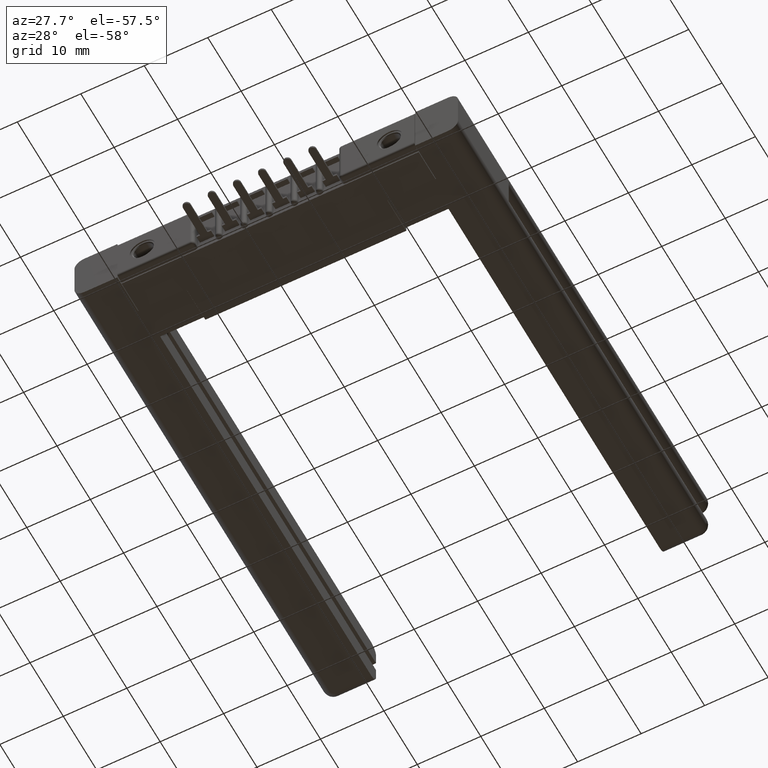
[diagram: clean part render]
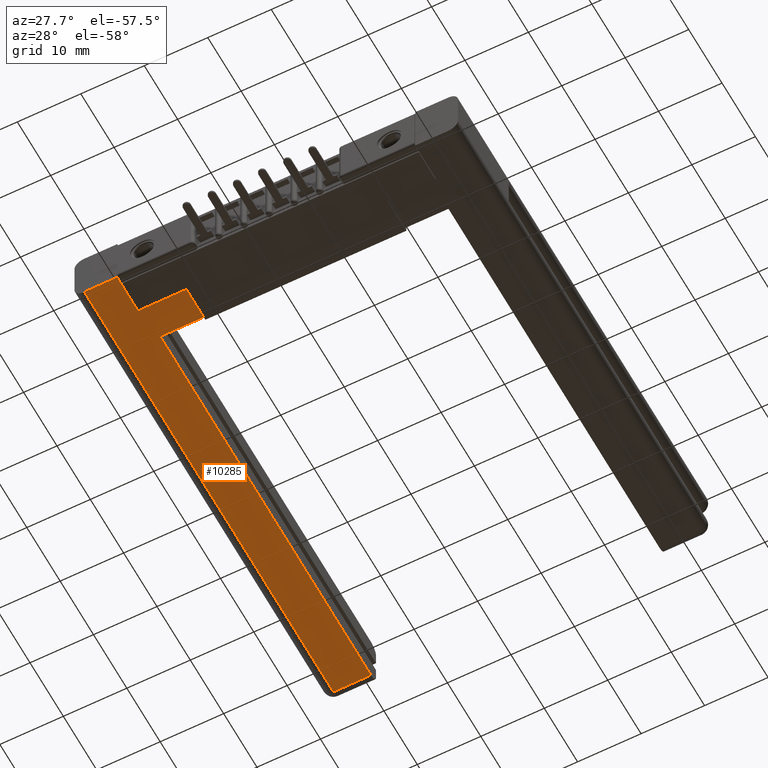
[diagram: same view with one face highlighted and labeled with its STEP entity id]
A machine part, auxiliary view. The second image highlights one B-rep face of the part: STEP entity #10285.
In plain terms, the highlighted planar face has unit normal (0, 0, -1).
Its self-contained STEP definition (entity closure, byte-faithful):
#15 = AXIS2_PLACEMENT_3D ( 'NONE', #10736, #2564, #6596 ) ;
#88 = VECTOR ( 'NONE', #9293, 39.37007874015748100 ) ;
#165 = EDGE_CURVE ( 'NONE', #9585, #3451, #5269, .T. ) ;
#188 = ORIENTED_EDGE ( 'NONE', *, *, #9081, .T. ) ;
#654 = CARTESIAN_POINT ( 'NONE',  ( 0.06150000000000015200, 1.248539903354370400E-016, -0.3400000000000018600 ) ) ;
#1420 = VECTOR ( 'NONE', #9345, 39.37007874015748100 ) ;
#1509 = CARTESIAN_POINT ( 'NONE',  ( 0.2950000000000062600, 0.4500000000000002300, -0.3400000000000031900 ) ) ;
#1545 = LINE ( 'NONE', #2323, #10625 ) ;
#1574 = EDGE_CURVE ( 'NONE', #3653, #1641, #5705, .T. ) ;
#1617 = ORIENTED_EDGE ( 'NONE', *, *, #10049, .T. ) ;
#1641 = VERTEX_POINT ( 'NONE', #11620 ) ;
#1888 = CARTESIAN_POINT ( 'NONE',  ( 0.5650000000000067200, 0.2450000000000008600, -0.3400000000000018600 ) ) ;
#2134 = ORIENTED_EDGE ( 'NONE', *, *, #9231, .F. ) ;
#2200 = LINE ( 'NONE', #10342, #1420 ) ;
#2323 = CARTESIAN_POINT ( 'NONE',  ( 0.2650000000000063400, 0.2450000000000000500, -0.3400000000000031900 ) ) ;
#2495 = CARTESIAN_POINT ( 'NONE',  ( 0.2950000000000062600, 0.4500000000000002300, -0.3400000000000031900 ) ) ;
#2564 = DIRECTION ( 'NONE',  ( 4.510281037539655900E-017, 2.334284690065026700E-016, -1.000000000000000000 ) ) ;
#2609 = VERTEX_POINT ( 'NONE', #9655 ) ;
#2772 = DIRECTION ( 'NONE',  ( 1.000000000000000000, 7.164262422741187300E-016, 4.510281037539672600E-017 ) ) ;
#3157 = CARTESIAN_POINT ( 'NONE',  ( 0.5650000000000069400, 0.4500000000000004000, -0.3400000000000018600 ) ) ;
#3336 = ORIENTED_EDGE ( 'NONE', *, *, #165, .F. ) ;
#3451 = VERTEX_POINT ( 'NONE', #10785 ) ;
#3504 = DIRECTION ( 'NONE',  ( 5.915108984173514200E-016, 1.000000000000000000, -2.334284690065039000E-016 ) ) ;
#3653 = VERTEX_POINT ( 'NONE', #9045 ) ;
#4146 = LINE ( 'NONE', #654, #88 ) ;
#4495 = DIRECTION ( 'NONE',  ( -1.000000000000000000, -7.120336040201832800E-016, -4.510281037539672600E-017 ) ) ;
#5128 = EDGE_LOOP ( 'NONE', ( #188, #1617, #3336, #7218, #7668, #2134, #10970, #5760 ) ) ;
#5195 = LINE ( 'NONE', #5205, #9570 ) ;
#5205 = CARTESIAN_POINT ( 'NONE',  ( 3.551402391763542400E-015, 2.940000000000007100, -0.3400000000000031900 ) ) ;
#5269 = LINE ( 'NONE', #9545, #10117 ) ;
#5556 = EDGE_CURVE ( 'NONE', #7191, #11220, #2200, .T. ) ;
#5587 = PLANE ( 'NONE',  #15 ) ;
#5705 = LINE ( 'NONE', #11789, #10087 ) ;
#5760 = ORIENTED_EDGE ( 'NONE', *, *, #1574, .F. ) ;
#6543 = CARTESIAN_POINT ( 'NONE',  ( 0.5650000000000067200, 0.2450000000000008600, -0.3400000000000018600 ) ) ;
#6596 = DIRECTION ( 'NONE',  ( -1.000000000000000000, -7.120336040201832800E-016, -4.510281037539672600E-017 ) ) ;
#7178 = EDGE_CURVE ( 'NONE', #11220, #9585, #7777, .T. ) ;
#7191 = VERTEX_POINT ( 'NONE', #6543 ) ;
#7218 = ORIENTED_EDGE ( 'NONE', *, *, #7178, .F. ) ;
#7473 = VECTOR ( 'NONE', #4495, 39.37007874015748100 ) ;
#7581 = LINE ( 'NONE', #1888, #12282 ) ;
#7668 = ORIENTED_EDGE ( 'NONE', *, *, #5556, .F. ) ;
#7777 = LINE ( 'NONE', #1509, #7473 ) ;
#8778 = FACE_OUTER_BOUND ( 'NONE', #5128, .T. ) ;
#9045 = CARTESIAN_POINT ( 'NONE',  ( 0.06150000000000015200, 1.248539903354370400E-016, -0.3400000000000018600 ) ) ;
#9081 = EDGE_CURVE ( 'NONE', #3653, #11021, #4146, .T. ) ;
#9231 = EDGE_CURVE ( 'NONE', #2609, #7191, #7581, .T. ) ;
#9293 = DIRECTION ( 'NONE',  ( 7.120336040201873200E-016, 1.000000000000000000, -2.334284690065040000E-016 ) ) ;
#9345 = DIRECTION ( 'NONE',  ( 1.045185798369489500E-015, 1.000000000000000000, -2.334284690065038500E-016 ) ) ;
#9545 = CARTESIAN_POINT ( 'NONE',  ( 0.2950000000000065300, 3.000000000000006700, -0.3400000000000031900 ) ) ;
#9570 = VECTOR ( 'NONE', #11328, 39.37007874015748100 ) ;
#9585 = VERTEX_POINT ( 'NONE', #2495 ) ;
#9630 = CARTESIAN_POINT ( 'NONE',  ( 0.06150000000000370400, 2.940000000000007100, -0.3400000000000031900 ) ) ;
#9655 = CARTESIAN_POINT ( 'NONE',  ( 0.2650000000000063400, 0.2450000000000000500, -0.3400000000000031900 ) ) ;
#10049 = EDGE_CURVE ( 'NONE', #11021, #3451, #5195, .T. ) ;
#10087 = VECTOR ( 'NONE', #2772, 39.37007874015748100 ) ;
#10117 = VECTOR ( 'NONE', #3504, 39.37007874015748100 ) ;
#10285 = ADVANCED_FACE ( 'NONE', ( #8778 ), #5587, .T. ) ;
#10342 = CARTESIAN_POINT ( 'NONE',  ( 0.5650000000000069400, 0.4500000000000004000, -0.3400000000000018600 ) ) ;
#10625 = VECTOR ( 'NONE', #11339, 39.37007874015748100 ) ;
#10736 = CARTESIAN_POINT ( 'NONE',  ( 0.0000000000000000000, 8.323599355695802500E-017, -0.3400000000000018600 ) ) ;
#10785 = CARTESIAN_POINT ( 'NONE',  ( 0.2950000000000065300, 2.940000000000007100, -0.3400000000000031900 ) ) ;
#10970 = ORIENTED_EDGE ( 'NONE', *, *, #11433, .F. ) ;
#11021 = VERTEX_POINT ( 'NONE', #9630 ) ;
#11220 = VERTEX_POINT ( 'NONE', #3157 ) ;
#11328 = DIRECTION ( 'NONE',  ( 1.000000000000000000, 7.120336040201832800E-016, 4.510281037539672600E-017 ) ) ;
#11339 = DIRECTION ( 'NONE',  ( 5.726536043434383500E-016, 1.000000000000000000, -2.334284690065039000E-016 ) ) ;
#11433 = EDGE_CURVE ( 'NONE', #1641, #2609, #1545, .T. ) ;
#11620 = CARTESIAN_POINT ( 'NONE',  ( 0.2650000000000033400, 2.785204399790518600E-016, -0.3400000000000031900 ) ) ;
#11789 = CARTESIAN_POINT ( 'NONE',  ( 0.2650000000000033400, 2.785204399790518600E-016, -0.3400000000000031900 ) ) ;
#12282 = VECTOR ( 'NONE', #12903, 39.37007874015748100 ) ;
#12903 = DIRECTION ( 'NONE',  ( 1.000000000000000000, 8.258606037561937000E-016, 4.510281037539667600E-017 ) ) ;